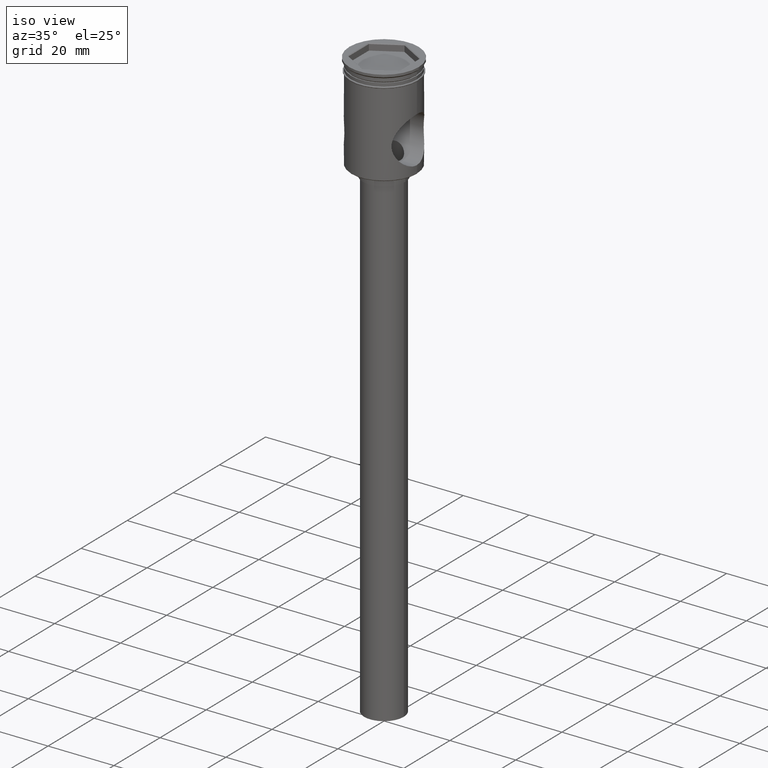
[diagram: clean part render]
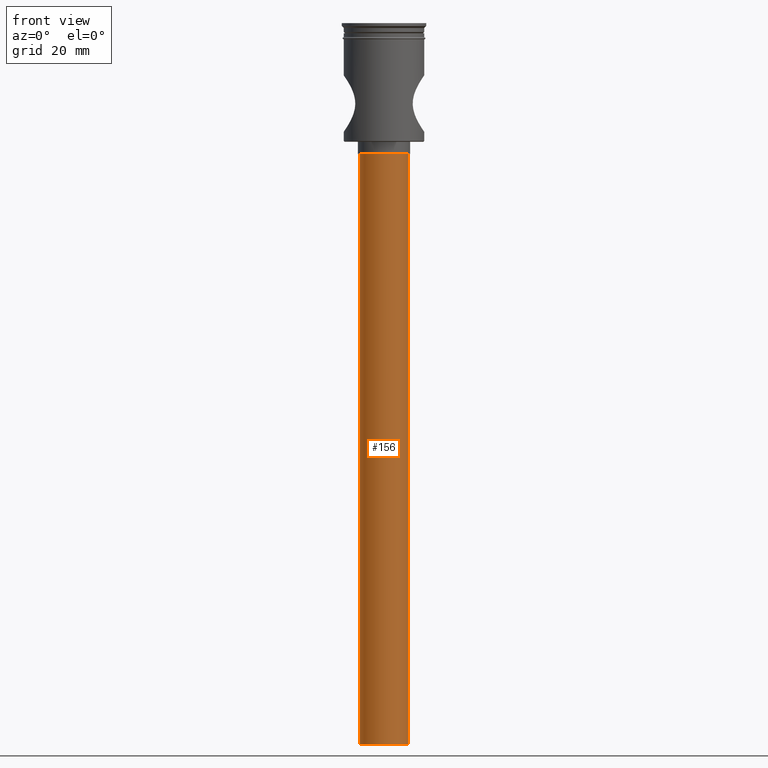
[diagram: tour spotlight — one face highlighted and labeled with its STEP entity id]
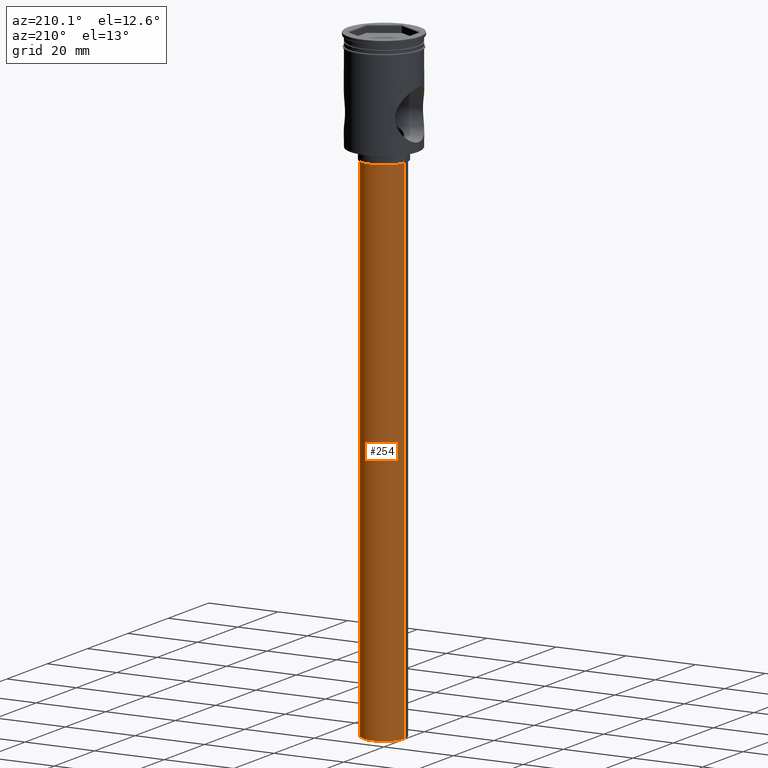
[diagram: tour spotlight — one face highlighted and labeled with its STEP entity id]
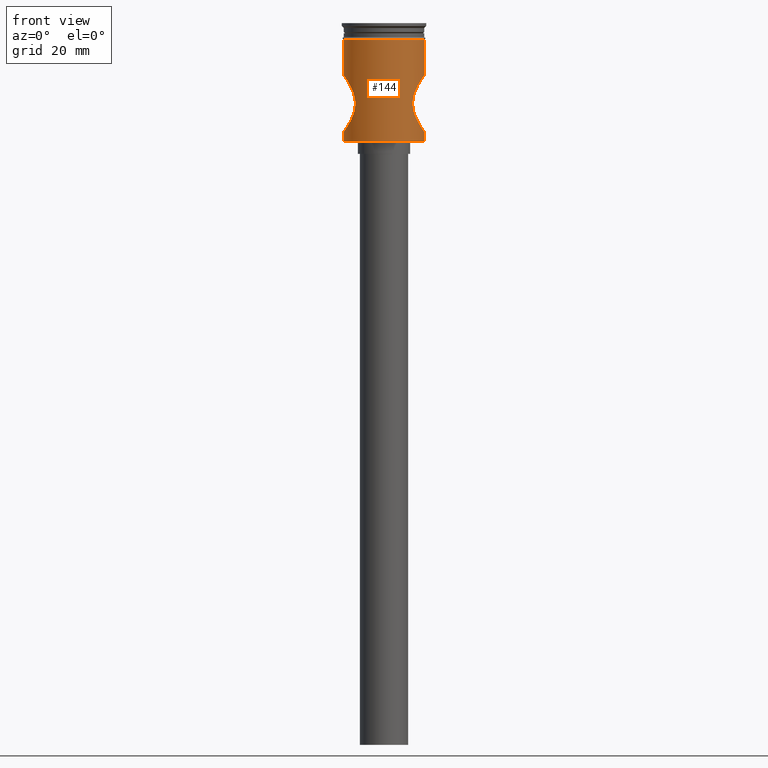
[diagram: tour spotlight — one face highlighted and labeled with its STEP entity id]
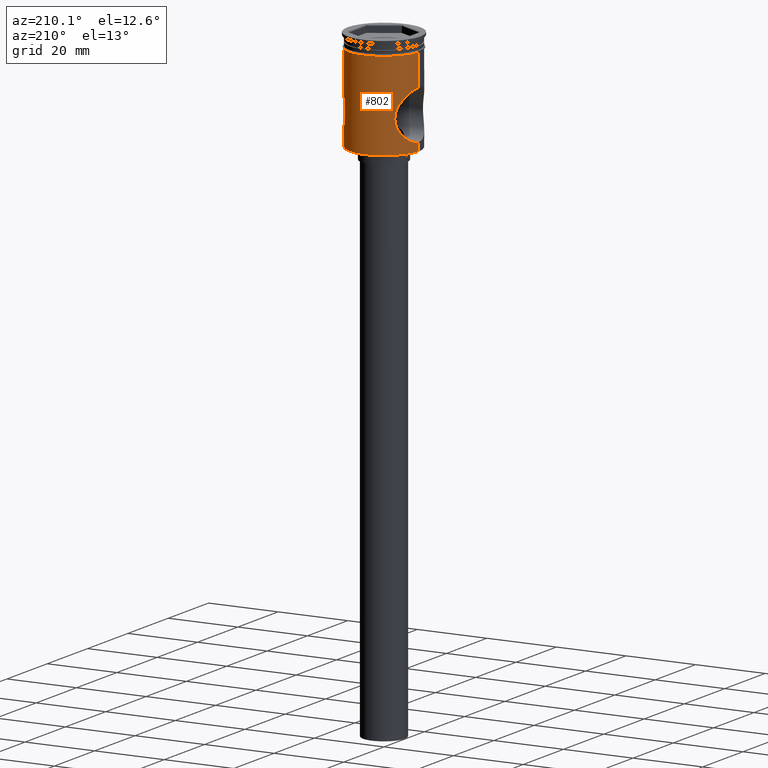
[diagram: tour spotlight — one face highlighted and labeled with its STEP entity id]
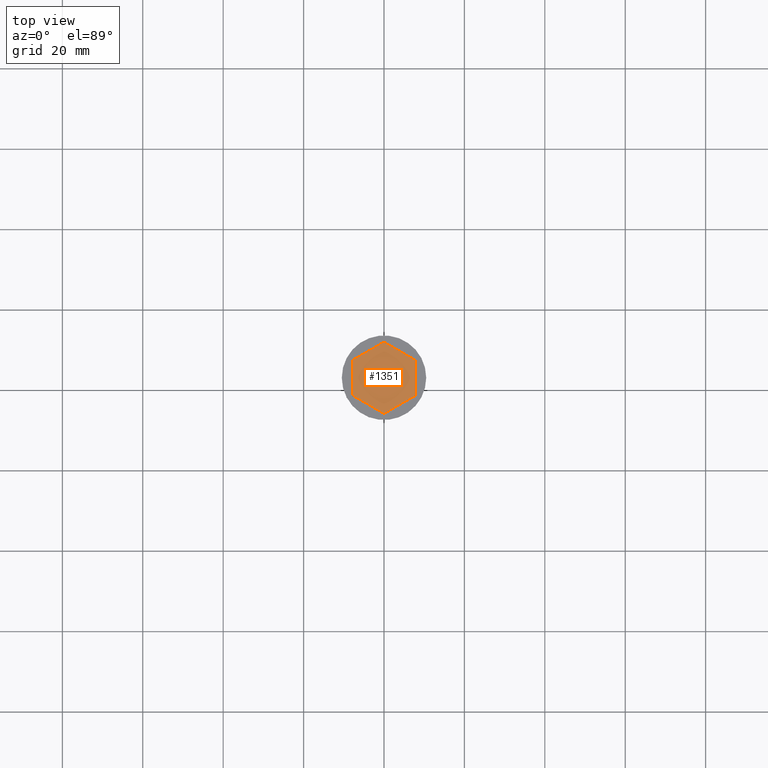
[diagram: tour spotlight — one face highlighted and labeled with its STEP entity id]
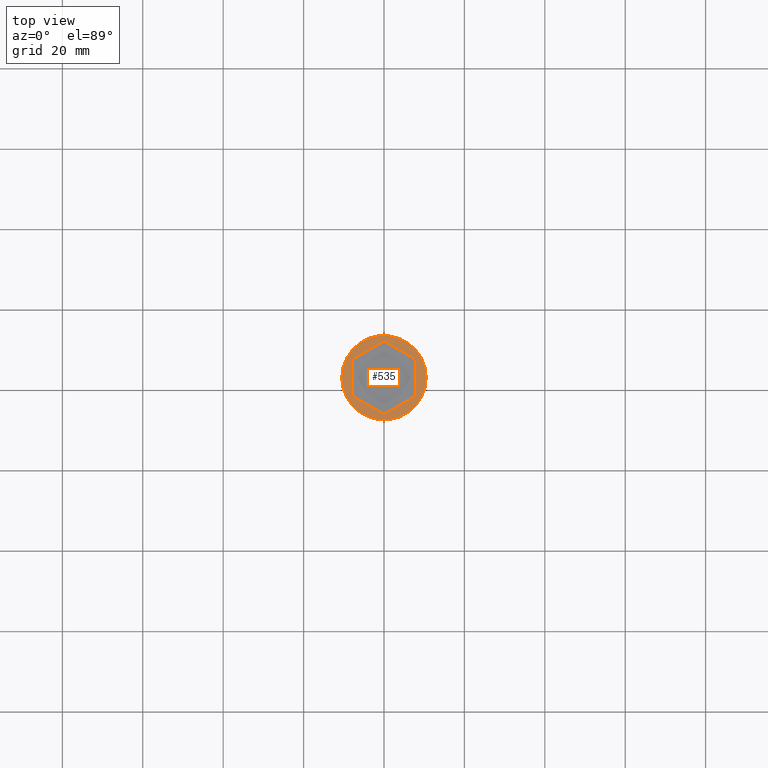
[diagram: tour spotlight — one face highlighted and labeled with its STEP entity id]
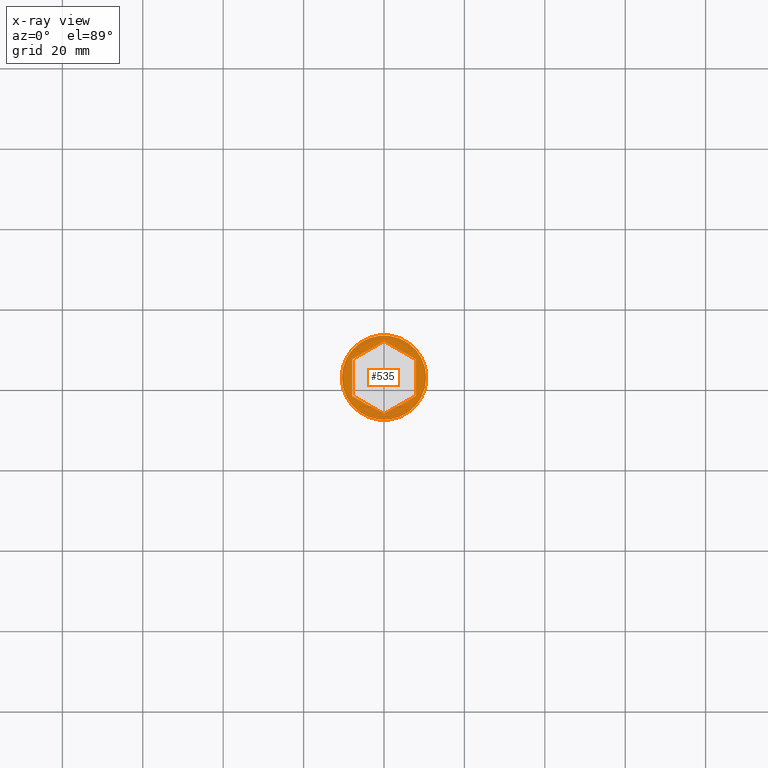
[diagram: x-ray of the same camera — body ghosted, this tour face saturated]
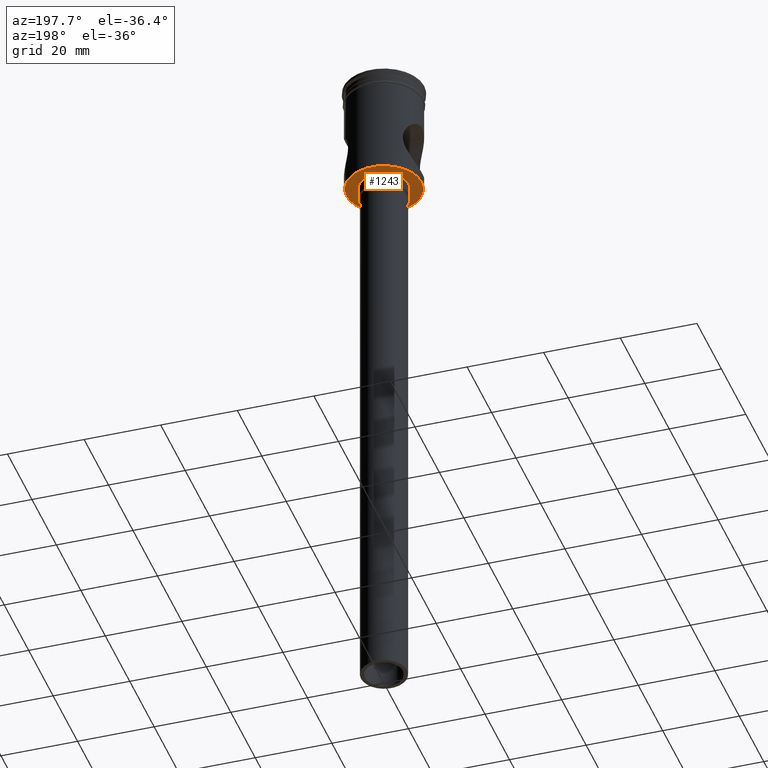
[diagram: tour spotlight — one face highlighted and labeled with its STEP entity id]
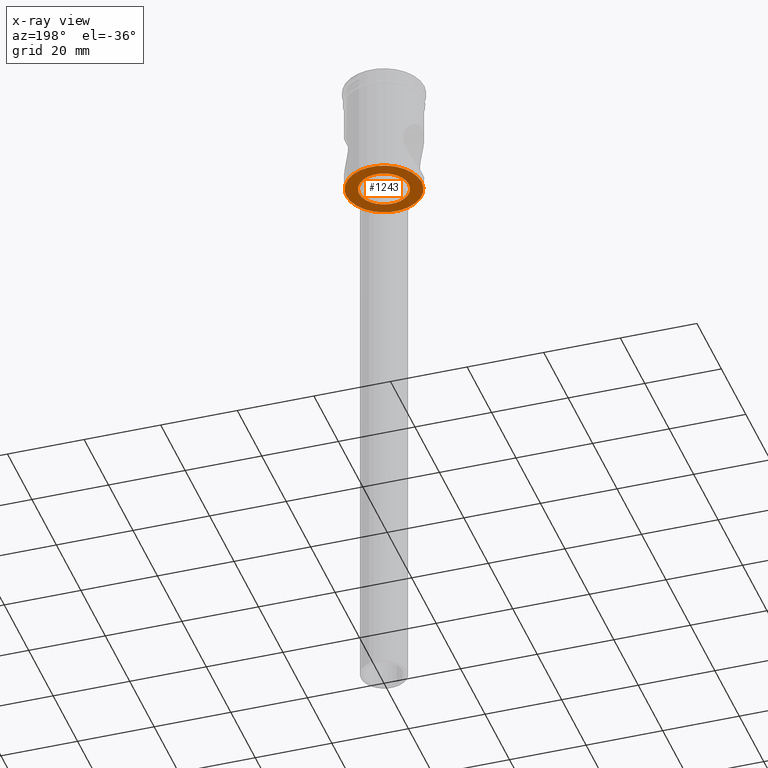
[diagram: x-ray of the same camera — body ghosted, this tour face saturated]
A machine part: a face-by-face anatomy tour. The part has 44 B-rep faces; the first image is the clean iso view, then the 7 largest visible faces are spotlighted one at a time (largest first), each with its STEP entity span.

Face 1 — front view, entity #156. In plain terms, the highlighted cylindrical surface (edge-blend (fillet) strip) has radius 6 mm, axis along (-0, -0, 1).
Definition (entity closure, byte-faithful):
#85 = CARTESIAN_POINT ( 'NONE',  ( 6.000000000000000888, 0.000000000000000000, -32.50000000000000000 ) ) ;
#96 = EDGE_CURVE ( 'NONE', #119, #247, #1257, .T. ) ;
#110 = DIRECTION ( 'NONE',  ( 0.000000000000000000, 0.000000000000000000, -1.000000000000000000 ) ) ;
#119 = VERTEX_POINT ( 'NONE', #1017 ) ;
#122 = AXIS2_PLACEMENT_3D ( 'NONE', #821, #110, #1385 ) ;
#156 = ADVANCED_FACE ( 'NONE', ( #800 ), #1394, .T. ) ;
#193 = CARTESIAN_POINT ( 'NONE',  ( 6.000000000000000888, 0.000000000000000000, -179.5000000000000000 ) ) ;
#207 = DIRECTION ( 'NONE',  ( 1.000000000000000000, 0.000000000000000000, 0.000000000000000000 ) ) ;
#210 = VERTEX_POINT ( 'NONE', #85 ) ;
#214 = DIRECTION ( 'NONE',  ( -0.000000000000000000, -0.000000000000000000, 1.000000000000000000 ) ) ;
#247 = VERTEX_POINT ( 'NONE', #383 ) ;
#262 = VERTEX_POINT ( 'NONE', #707 ) ;
#294 = EDGE_CURVE ( 'NONE', #210, #247, #760, .T. ) ;
#321 = CARTESIAN_POINT ( 'NONE',  ( 0.000000000000000000, 0.000000000000000000, -179.5000000000000000 ) ) ;
#346 = CARTESIAN_POINT ( 'NONE',  ( -6.000000000000000888, 7.347880794884120722E-16, -179.5000000000000000 ) ) ;
#383 = CARTESIAN_POINT ( 'NONE',  ( -6.000000000000000888, 7.347880794884120722E-16, -32.50000000000000000 ) ) ;
#532 = ORIENTED_EDGE ( 'NONE', *, *, #294, .T. ) ;
#545 = DIRECTION ( 'NONE',  ( -0.000000000000000000, -0.000000000000000000, 1.000000000000000000 ) ) ;
#579 = ORIENTED_EDGE ( 'NONE', *, *, #96, .F. ) ;
#639 = VECTOR ( 'NONE', #1360, 1000.000000000000000 ) ;
#707 = CARTESIAN_POINT ( 'NONE',  ( 6.000000000000000888, 0.000000000000000000, -179.5000000000000000 ) ) ;
#713 = DIRECTION ( 'NONE',  ( 0.000000000000000000, 0.000000000000000000, -1.000000000000000000 ) ) ;
#728 = DIRECTION ( 'NONE',  ( -1.000000000000000000, 0.000000000000000000, 0.000000000000000000 ) ) ;
#760 = CIRCLE ( 'NONE', #1229, 6.000000000000000888 ) ;
#772 = ORIENTED_EDGE ( 'NONE', *, *, #1072, .T. ) ;
#800 = FACE_OUTER_BOUND ( 'NONE', #862, .T. ) ;
#821 = CARTESIAN_POINT ( 'NONE',  ( 0.000000000000000000, 0.000000000000000000, -179.5000000000000000 ) ) ;
#829 = EDGE_CURVE ( 'NONE', #262, #119, #1008, .T. ) ;
#835 = VECTOR ( 'NONE', #214, 1000.000000000000000 ) ;
#862 = EDGE_LOOP ( 'NONE', ( #579, #1444, #772, #532 ) ) ;
#928 = AXIS2_PLACEMENT_3D ( 'NONE', #321, #545, #207 ) ;
#963 = CARTESIAN_POINT ( 'NONE',  ( 0.000000000000000000, 0.000000000000000000, -32.50000000000000000 ) ) ;
#1008 = CIRCLE ( 'NONE', #122, 6.000000000000000888 ) ;
#1017 = CARTESIAN_POINT ( 'NONE',  ( -6.000000000000000888, 7.347880794884120722E-16, -179.5000000000000000 ) ) ;
#1072 = EDGE_CURVE ( 'NONE', #262, #210, #1248, .T. ) ;
#1229 = AXIS2_PLACEMENT_3D ( 'NONE', #963, #713, #728 ) ;
#1248 = LINE ( 'NONE', #193, #639 ) ;
#1257 = LINE ( 'NONE', #346, #835 ) ;
#1360 = DIRECTION ( 'NONE',  ( -0.000000000000000000, -0.000000000000000000, 1.000000000000000000 ) ) ;
#1385 = DIRECTION ( 'NONE',  ( -1.000000000000000000, 0.000000000000000000, 0.000000000000000000 ) ) ;
#1394 = CYLINDRICAL_SURFACE ( 'NONE', #928, 6.000000000000000888 ) ;
#1444 = ORIENTED_EDGE ( 'NONE', *, *, #829, .F. ) ;

Face 2 — auxiliary view, entity #254. In plain terms, the highlighted cylindrical surface (edge-blend (fillet) strip) has radius 6 mm, axis along (-0, -0, 1).
Definition (entity closure, byte-faithful):
#2 = DIRECTION ( 'NONE',  ( -1.000000000000000000, 0.000000000000000000, 0.000000000000000000 ) ) ;
#71 = AXIS2_PLACEMENT_3D ( 'NONE', #382, #1336, #1369 ) ;
#85 = CARTESIAN_POINT ( 'NONE',  ( 6.000000000000000888, 0.000000000000000000, -32.50000000000000000 ) ) ;
#96 = EDGE_CURVE ( 'NONE', #119, #247, #1257, .T. ) ;
#119 = VERTEX_POINT ( 'NONE', #1017 ) ;
#124 = DIRECTION ( 'NONE',  ( -0.000000000000000000, -0.000000000000000000, 1.000000000000000000 ) ) ;
#193 = CARTESIAN_POINT ( 'NONE',  ( 6.000000000000000888, 0.000000000000000000, -179.5000000000000000 ) ) ;
#210 = VERTEX_POINT ( 'NONE', #85 ) ;
#214 = DIRECTION ( 'NONE',  ( -0.000000000000000000, -0.000000000000000000, 1.000000000000000000 ) ) ;
#227 = DIRECTION ( 'NONE',  ( 1.000000000000000000, 0.000000000000000000, 0.000000000000000000 ) ) ;
#247 = VERTEX_POINT ( 'NONE', #383 ) ;
#254 = ADVANCED_FACE ( 'NONE', ( #1419 ), #857, .T. ) ;
#262 = VERTEX_POINT ( 'NONE', #707 ) ;
#340 = AXIS2_PLACEMENT_3D ( 'NONE', #572, #563, #2 ) ;
#346 = CARTESIAN_POINT ( 'NONE',  ( -6.000000000000000888, 7.347880794884120722E-16, -179.5000000000000000 ) ) ;
#370 = ORIENTED_EDGE ( 'NONE', *, *, #96, .T. ) ;
#382 = CARTESIAN_POINT ( 'NONE',  ( 0.000000000000000000, 0.000000000000000000, -179.5000000000000000 ) ) ;
#383 = CARTESIAN_POINT ( 'NONE',  ( -6.000000000000000888, 7.347880794884120722E-16, -32.50000000000000000 ) ) ;
#489 = ORIENTED_EDGE ( 'NONE', *, *, #1072, .F. ) ;
#563 = DIRECTION ( 'NONE',  ( 0.000000000000000000, 0.000000000000000000, -1.000000000000000000 ) ) ;
#572 = CARTESIAN_POINT ( 'NONE',  ( 0.000000000000000000, 0.000000000000000000, -32.50000000000000000 ) ) ;
#639 = VECTOR ( 'NONE', #1360, 1000.000000000000000 ) ;
#707 = CARTESIAN_POINT ( 'NONE',  ( 6.000000000000000888, 0.000000000000000000, -179.5000000000000000 ) ) ;
#725 = EDGE_CURVE ( 'NONE', #119, #262, #734, .T. ) ;
#734 = CIRCLE ( 'NONE', #71, 6.000000000000000888 ) ;
#827 = EDGE_LOOP ( 'NONE', ( #1206, #370, #1352, #489 ) ) ;
#832 = CARTESIAN_POINT ( 'NONE',  ( 0.000000000000000000, 0.000000000000000000, -179.5000000000000000 ) ) ;
#835 = VECTOR ( 'NONE', #214, 1000.000000000000000 ) ;
#839 = CIRCLE ( 'NONE', #340, 6.000000000000000888 ) ;
#857 = CYLINDRICAL_SURFACE ( 'NONE', #1399, 6.000000000000000888 ) ;
#890 = EDGE_CURVE ( 'NONE', #247, #210, #839, .T. ) ;
#1017 = CARTESIAN_POINT ( 'NONE',  ( -6.000000000000000888, 7.347880794884120722E-16, -179.5000000000000000 ) ) ;
#1072 = EDGE_CURVE ( 'NONE', #262, #210, #1248, .T. ) ;
#1206 = ORIENTED_EDGE ( 'NONE', *, *, #725, .F. ) ;
#1248 = LINE ( 'NONE', #193, #639 ) ;
#1257 = LINE ( 'NONE', #346, #835 ) ;
#1336 = DIRECTION ( 'NONE',  ( 0.000000000000000000, 0.000000000000000000, -1.000000000000000000 ) ) ;
#1352 = ORIENTED_EDGE ( 'NONE', *, *, #890, .T. ) ;
#1360 = DIRECTION ( 'NONE',  ( -0.000000000000000000, -0.000000000000000000, 1.000000000000000000 ) ) ;
#1369 = DIRECTION ( 'NONE',  ( -1.000000000000000000, 0.000000000000000000, 0.000000000000000000 ) ) ;
#1399 = AXIS2_PLACEMENT_3D ( 'NONE', #832, #124, #227 ) ;
#1419 = FACE_OUTER_BOUND ( 'NONE', #827, .T. ) ;

Face 3 — front view, entity #144. In plain terms, the highlighted cylindrical surface (partial cylindrical patch) has radius 10 mm, axis along (-0, -0, 1).
Definition (entity closure, byte-faithful):
#1 = VERTEX_POINT ( 'NONE', #278 ) ;
#5 = CARTESIAN_POINT ( 'NONE',  ( 7.140877080678153632, -7.000562488098498903, -19.52635574343557678 ) ) ;
#8 = CARTESIAN_POINT ( 'NONE',  ( -7.503273641266416050, -6.611317046147628496, -22.31171733569519944 ) ) ;
#13 = CARTESIAN_POINT ( 'NONE',  ( 9.347318963212909892, -3.576349491498993505, -13.96584429441085717 ) ) ;
#27 = CARTESIAN_POINT ( 'NONE',  ( -7.964400624432382614, -6.054727537725130837, -23.54044438658495153 ) ) ;
#32 = CARTESIAN_POINT ( 'NONE',  ( 8.503943671969897977, -5.273689396165734067, -24.62422230267287304 ) ) ;
#41 = CARTESIAN_POINT ( 'NONE',  ( -9.029975738911995009, -4.315133941133940887, -14.47019995321800501 ) ) ;
#55 = CARTESIAN_POINT ( 'NONE',  ( 9.965325511264428116, -0.9525671816038108197, -26.95070955909274346 ) ) ;
#61 = CARTESIAN_POINT ( 'NONE',  ( 9.826638545464751573, -1.868062541291061418, -26.75021854738501403 ) ) ;
#92 = FACE_OUTER_BOUND ( 'NONE', #479, .T. ) ;
#93 = CARTESIAN_POINT ( 'NONE',  ( 0.000000000000000000, 0.000000000000000000, -29.29999999999997229 ) ) ;
#128 = CARTESIAN_POINT ( 'NONE',  ( -9.029024665842506181, -4.317593744654968368, -25.52832831042054451 ) ) ;
#134 = CARTESIAN_POINT ( 'NONE',  ( 9.999999999999994671, 0.000000000000000000, 0.000000000000000000 ) ) ;
#139 = CARTESIAN_POINT ( 'NONE',  ( 7.723089038241833570, -6.353518016691835690, -22.94679462982523077 ) ) ;
#144 = ADVANCED_FACE ( 'NONE', ( #92 ), #818, .T. ) ;
#160 = CARTESIAN_POINT ( 'NONE',  ( -8.315624236750039699, -5.562535070965513029, -24.27231501587448292 ) ) ;
#168 = ORIENTED_EDGE ( 'NONE', *, *, #974, .F. ) ;
#202 = CARTESIAN_POINT ( 'NONE',  ( 0.000000000000000000, 0.000000000000000000, -3.999999999999996447 ) ) ;
#222 = ORIENTED_EDGE ( 'NONE', *, *, #301, .F. ) ;
#229 = VERTEX_POINT ( 'NONE', #460 ) ;
#233 = CARTESIAN_POINT ( 'NONE',  ( 7.322655419112947150, -6.810500286563441641, -18.36528137380276249 ) ) ;
#236 = DIRECTION ( 'NONE',  ( -0.000000000000000000, -0.000000000000000000, 1.000000000000000000 ) ) ;
#246 = CARTESIAN_POINT ( 'NONE',  ( -8.053311715077983379, -5.930176009131116643, -16.27420902905398847 ) ) ;
#250 = CARTESIAN_POINT ( 'NONE',  ( 7.377383315084116155, -6.751497144694275754, -18.13709901651008494 ) ) ;
#253 = CARTESIAN_POINT ( 'NONE',  ( -7.801002067758137315, -6.258004569467827238, -16.85560777748650096 ) ) ;
#257 = CARTESIAN_POINT ( 'NONE',  ( 9.991596185262174856, -0.4736682493084634071, -13.01198930438257939 ) ) ;
#260 = CARTESIAN_POINT ( 'NONE',  ( -9.991574020215788110, -0.4743472386555552256, -13.01202085301403244 ) ) ;
#272 = CARTESIAN_POINT ( 'NONE',  ( -9.999999999999996447, 0.000000000000000000, -27.00000000000000355 ) ) ;
#276 = CARTESIAN_POINT ( 'NONE',  ( 9.999999999999994671, 0.000000000000000000, 0.000000000000000000 ) ) ;
#278 = CARTESIAN_POINT ( 'NONE',  ( -10.00000000000000000, 1.224646799147353256E-15, -3.999999999999996447 ) ) ;
#301 = EDGE_CURVE ( 'NONE', #846, #498, #799, .T. ) ;
#328 = DIRECTION ( 'NONE',  ( -0.000000000000000000, -0.000000000000000000, 1.000000000000000000 ) ) ;
#329 = DIRECTION ( 'NONE',  ( -1.000000000000000000, 0.000000000000000000, 0.000000000000000000 ) ) ;
#345 = CARTESIAN_POINT ( 'NONE',  ( -9.999999999999994671, 1.224646799147352665E-15, -29.29999999999997229 ) ) ;
#352 = CARTESIAN_POINT ( 'NONE',  ( 9.028965068475372391, -4.317457269925927044, -14.47181101200376219 ) ) ;
#368 = CARTESIAN_POINT ( 'NONE',  ( 7.141989287018506438, -6.999427809131204548, -20.49012689816928301 ) ) ;
#371 = CARTESIAN_POINT ( 'NONE',  ( -9.343068346694407111, -3.570972421456891865, -13.97506645596566699 ) ) ;
#376 = CARTESIAN_POINT ( 'NONE',  ( 7.717429328536873356, -6.360383034377455225, -17.06803860621226221 ) ) ;
#380 = CARTESIAN_POINT ( 'NONE',  ( -7.720495804876727597, -6.356685689900114511, -17.05985571267803991 ) ) ;
#385 = ORIENTED_EDGE ( 'NONE', *, *, #982, .T. ) ;
#386 = CARTESIAN_POINT ( 'NONE',  ( -9.999999999999992895, -0.2371603752032593604, -12.99999999999999822 ) ) ;
#394 = CIRCLE ( 'NONE', #1309, 9.999999999999998224 ) ;
#396 = CARTESIAN_POINT ( 'NONE',  ( -7.967226261725709691, -6.044961550507585990, -16.46329765270407464 ) ) ;
#405 = EDGE_CURVE ( 'NONE', #509, #498, #1327, .T. ) ;
#460 = CARTESIAN_POINT ( 'NONE',  ( -9.999999999999994671, 1.229780025839397734E-15, -13.00000000000000355 ) ) ;
#476 = DIRECTION ( 'NONE',  ( -0.000000000000000000, -0.000000000000000000, 1.000000000000000000 ) ) ;
#479 = EDGE_LOOP ( 'NONE', ( #1242, #999, #657, #222, #385, #496, #526, #168 ) ) ;
#480 = CARTESIAN_POINT ( 'NONE',  ( -7.236111701560243858, -6.902383710959965057, -21.18811620976742915 ) ) ;
#488 = CARTESIAN_POINT ( 'NONE',  ( -9.735967975428483356, -2.325336189795351949, -13.38128717480536167 ) ) ;
#496 = ORIENTED_EDGE ( 'NONE', *, *, #1324, .F. ) ;
#497 = CARTESIAN_POINT ( 'NONE',  ( -7.141373392009655596, -7.000056148497765030, -19.76373034873125434 ) ) ;
#498 = VERTEX_POINT ( 'NONE', #1255 ) ;
#500 = CARTESIAN_POINT ( 'NONE',  ( 8.860185483737918588, -4.650373212660213085, -25.25064384002004303 ) ) ;
#504 = CARTESIAN_POINT ( 'NONE',  ( -9.493823586986472662, -3.171854784083766532, -26.25704949909892605 ) ) ;
#509 = VERTEX_POINT ( 'NONE', #1275 ) ;
#510 = CARTESIAN_POINT ( 'NONE',  ( -9.485754788391531633, -3.172574074835091462, -13.75608760595409308 ) ) ;
#515 = VECTOR ( 'NONE', #236, 1000.000000000000000 ) ;
#526 = ORIENTED_EDGE ( 'NONE', *, *, #623, .F. ) ;
#552 = DIRECTION ( 'NONE',  ( 1.000000000000000000, 0.000000000000000000, 0.000000000000000000 ) ) ;
#584 = AXIS2_PLACEMENT_3D ( 'NONE', #1023, #328, #672 ) ;
#592 = CARTESIAN_POINT ( 'NONE',  ( 8.853430568094129427, -4.663155653245506294, -14.76073180007296415 ) ) ;
#599 = CARTESIAN_POINT ( 'NONE',  ( 9.832878540591767802, -1.879722866531851500, -13.24054240779418912 ) ) ;
#602 = DIRECTION ( 'NONE',  ( -0.000000000000000000, -0.000000000000000000, 1.000000000000000000 ) ) ;
#606 = CARTESIAN_POINT ( 'NONE',  ( 7.802583678074496376, -6.256037095215745580, -23.14831442975813758 ) ) ;
#617 = CARTESIAN_POINT ( 'NONE',  ( 8.056358060451358938, -5.926078000082590336, -23.73242365119358865 ) ) ;
#623 = EDGE_CURVE ( 'NONE', #229, #1, #926, .T. ) ;
#627 = CARTESIAN_POINT ( 'NONE',  ( -7.141483849871206324, -6.999943458932624374, -20.23958506209359243 ) ) ;
#657 = ORIENTED_EDGE ( 'NONE', *, *, #405, .T. ) ;
#672 = DIRECTION ( 'NONE',  ( 1.000000000000000000, 0.000000000000000000, 0.000000000000000000 ) ) ;
#673 = DIRECTION ( 'NONE',  ( -0.000000000000000000, -0.000000000000000000, 1.000000000000000000 ) ) ;
#710 = CARTESIAN_POINT ( 'NONE',  ( -9.932071413309429886, -1.186883990593140314, -13.09730212679606964 ) ) ;
#717 = CARTESIAN_POINT ( 'NONE',  ( -9.832512437962641627, -1.881659858244549621, -13.24107387809922720 ) ) ;
#721 = CARTESIAN_POINT ( 'NONE',  ( 7.574535355013245486, -6.529908853628298537, -22.53201108648861961 ) ) ;
#731 = CARTESIAN_POINT ( 'NONE',  ( -7.153235015771535643, -6.988014041043822289, -19.52714534028609350 ) ) ;
#742 = CARTESIAN_POINT ( 'NONE',  ( -7.325106434378655607, -6.807865243658027588, -21.64544578927128882 ) ) ;
#799 = B_SPLINE_CURVE_WITH_KNOTS ( 'NONE', 3,
 ( #1412, #1053, #257, #1192, #1533, #599, #1185, #1067, #13, #352, #592, #938, #1061, #850, #1294, #1435, #376, #1426, #1176, #250, #233, #1320, #5, #368, #1075, #945, #843, #1312, #721, #139, #606, #1199, #617, #1086, #32, #500, #969, #1442, #1337, #988, #874, #61, #886, #55, #1357, #1223 ),
 .UNSPECIFIED., .F., .F.,
 ( 4, 2, 2, 2, 2, 2, 2, 2, 2, 2, 2, 2, 2, 2, 2, 2, 2, 2, 2, 2, 2, 2, 4 ),
 ( 0.02273717132267115415, 0.02344677004960173464, 0.02415636877653231512, 0.02557556623039347263, 0.02699476368425463360, 0.02841396113811579111, 0.02983315859197695208, 0.03054275731890752910, 0.03125235604583810611, 0.03196195477276868313, 0.03267155349969926015, 0.03409075095356042112, 0.03550994840742158210, 0.03621954713435215911, 0.03692914586128273613, 0.03763874458821332009, 0.03834834331514389710, 0.03976754076900505808, 0.04118673822286621211, 0.04260593567672736615, 0.04331553440365794316, 0.04402513313058852018, 0.04544433058444967422 ),
 .UNSPECIFIED. ) ;
#808 = VECTOR ( 'NONE', #476, 1000.000000000000000 ) ;
#818 = CYLINDRICAL_SURFACE ( 'NONE', #584, 9.999999999999994671 ) ;
#837 = CARTESIAN_POINT ( 'NONE',  ( -9.965446655919851793, -0.9519641332654177335, -26.95088558220736275 ) ) ;
#843 = CARTESIAN_POINT ( 'NONE',  ( 7.381411116935109540, -6.747102913955163039, -21.87877048370861033 ) ) ;
#846 = VERTEX_POINT ( 'NONE', #1172 ) ;
#847 = CARTESIAN_POINT ( 'NONE',  ( -9.957729828106902659, -0.9487746701410776362, -13.06049825370512885 ) ) ;
#850 = CARTESIAN_POINT ( 'NONE',  ( 8.050554706296177088, -5.933943087171876130, -16.28011583648020988 ) ) ;
#854 = EDGE_CURVE ( 'NONE', #1494, #972, #1050, .T. ) ;
#860 = CARTESIAN_POINT ( 'NONE',  ( -9.999999999999994671, 1.229780025839397734E-15, -13.00000000000000355 ) ) ;
#870 = CARTESIAN_POINT ( 'NONE',  ( -7.234464554488559962, -6.904114004842420549, -18.82145945963318567 ) ) ;
#874 = CARTESIAN_POINT ( 'NONE',  ( 9.730782946235684960, -2.316105786581691195, -26.60989879506474054 ) ) ;
#885 = VECTOR ( 'NONE', #1093, 1000.000000000000000 ) ;
#886 = CARTESIAN_POINT ( 'NONE',  ( 9.867116120145132285, -1.641278058953922203, -26.80890176429205596 ) ) ;
#924 = CARTESIAN_POINT ( 'NONE',  ( -9.999999999999994671, 1.224646799147352665E-15, 0.000000000000000000 ) ) ;
#926 = LINE ( 'NONE', #1417, #808 ) ;
#938 = CARTESIAN_POINT ( 'NONE',  ( 8.497179343882919511, -5.284524261307589121, -15.38819392766633065 ) ) ;
#945 = CARTESIAN_POINT ( 'NONE',  ( 7.326263957022343121, -6.806624336356016158, -21.65073055260621260 ) ) ;
#948 = CARTESIAN_POINT ( 'NONE',  ( -9.267396788860443380, -3.762388530127550812, -14.09286872329777296 ) ) ;
#957 = CIRCLE ( 'NONE', #1252, 9.999999999999994671 ) ;
#966 = CARTESIAN_POINT ( 'NONE',  ( -7.379165411094855465, -6.749558967525724817, -21.87002777218120286 ) ) ;
#969 = CARTESIAN_POINT ( 'NONE',  ( 9.035512705743391493, -4.303590503429355785, -25.53881697926559369 ) ) ;
#972 = VERTEX_POINT ( 'NONE', #272 ) ;
#973 = CARTESIAN_POINT ( 'NONE',  ( -8.498707828545159160, -5.282283036785493380, -15.38527946463392659 ) ) ;
#974 = EDGE_CURVE ( 'NONE', #972, #229, #1091, .T. ) ;
#980 = CARTESIAN_POINT ( 'NONE',  ( -8.500359578522523663, -5.279417043634754947, -24.61763755135370957 ) ) ;
#982 = EDGE_CURVE ( 'NONE', #846, #1088, #1188, .T. ) ;
#988 = CARTESIAN_POINT ( 'NONE',  ( 9.675488818793544610, -2.536388918100088485, -26.52836702033824778 ) ) ;
#999 = ORIENTED_EDGE ( 'NONE', *, *, #1178, .T. ) ;
#1023 = CARTESIAN_POINT ( 'NONE',  ( 0.000000000000000000, 0.000000000000000000, 0.000000000000000000 ) ) ;
#1031 = VECTOR ( 'NONE', #602, 1000.000000000000000 ) ;
#1041 = DIRECTION ( 'NONE',  ( -0.000000000000000000, -0.000000000000000000, 1.000000000000000000 ) ) ;
#1050 = LINE ( 'NONE', #924, #515 ) ;
#1053 = CARTESIAN_POINT ( 'NONE',  ( 9.999999999999996447, -0.2368473339933005184, -13.00000000000000178 ) ) ;
#1061 = CARTESIAN_POINT ( 'NONE',  ( 8.315544161946235135, -5.562748588078726186, -15.72768175892419151 ) ) ;
#1064 = CARTESIAN_POINT ( 'NONE',  ( -9.349377247001186220, -3.571280898155816619, -26.03738208151085942 ) ) ;
#1067 = CARTESIAN_POINT ( 'NONE',  ( 9.492393824703038163, -3.176669941205827907, -13.74509325342724075 ) ) ;
#1075 = CARTESIAN_POINT ( 'NONE',  ( 7.191763660842745765, -6.949507115151161152, -20.96152780032075569 ) ) ;
#1079 = CARTESIAN_POINT ( 'NONE',  ( -9.999999999999998224, -0.4814323775651352944, -27.00000000000000711 ) ) ;
#1086 = CARTESIAN_POINT ( 'NONE',  ( 8.322069302564294446, -5.553051878775055350, -24.28499264081531805 ) ) ;
#1088 = VERTEX_POINT ( 'NONE', #1125 ) ;
#1091 = B_SPLINE_CURVE_WITH_KNOTS ( 'NONE', 3,
 ( #1195, #1079, #837, #1453, #1316, #504, #1064, #128, #1213, #980, #160, #27, #1204, #1308, #8, #966, #742, #480, #1430, #1331, #627, #497, #731, #1097, #870, #1181, #1439, #380, #253, #396, #246, #1340, #973, #1445, #41, #948, #371, #510, #1422, #488, #717, #710, #847, #260, #386, #860 ),
 .UNSPECIFIED., .F., .F.,
 ( 4, 2, 2, 2, 2, 2, 2, 2, 2, 2, 2, 2, 2, 2, 2, 2, 2, 2, 2, 2, 2, 2, 4 ),
 ( 0.000000000000000000, 0.001421073207666954290, 0.002842146415333908580, 0.004263219623000863087, 0.005684292830667816293, 0.007105366038334770366, 0.008526439246001722705, 0.009236975849835196706, 0.009947512453668670707, 0.01065804905750214297, 0.01136858566133561697, 0.01207912226516908924, 0.01278965886900256151, 0.01421073207666950777, 0.01492126868050297657, 0.01563180528433644884, 0.01705287849200338296, 0.01847395169967032055, 0.01918448830350378762, 0.01989502490733725468, 0.02131609811500418880, 0.02202663471883765586, 0.02273717132267112292 ),
 .UNSPECIFIED. ) ;
#1093 = DIRECTION ( 'NONE',  ( -0.000000000000000000, -0.000000000000000000, 1.000000000000000000 ) ) ;
#1097 = CARTESIAN_POINT ( 'NONE',  ( -7.199668910925415055, -6.940164191266632976, -19.05657392165621999 ) ) ;
#1125 = CARTESIAN_POINT ( 'NONE',  ( 9.999999999999998224, 0.000000000000000000, -3.999999999999996447 ) ) ;
#1172 = CARTESIAN_POINT ( 'NONE',  ( 9.999999999999994671, -5.133226810943367768E-18, -13.00000000000000355 ) ) ;
#1176 = CARTESIAN_POINT ( 'NONE',  ( 7.500597748671954612, -6.614342876288897166, -17.69704926583546722 ) ) ;
#1178 = EDGE_CURVE ( 'NONE', #1494, #509, #957, .T. ) ;
#1181 = CARTESIAN_POINT ( 'NONE',  ( -7.368839572955796058, -6.761454996973015774, -18.12764364703030395 ) ) ;
#1185 = CARTESIAN_POINT ( 'NONE',  ( 9.736384942666981956, -2.323699784143519409, -13.38067151163704516 ) ) ;
#1188 = LINE ( 'NONE', #134, #1031 ) ;
#1192 = CARTESIAN_POINT ( 'NONE',  ( 9.957864273581442660, -0.9472565907286202291, -13.06030547907275619 ) ) ;
#1195 = CARTESIAN_POINT ( 'NONE',  ( -9.999999999999996447, 0.000000000000000000, -27.00000000000000355 ) ) ;
#1199 = CARTESIAN_POINT ( 'NONE',  ( 7.969012120586810966, -6.042611853496006269, -23.54072391938827025 ) ) ;
#1204 = CARTESIAN_POINT ( 'NONE',  ( -7.796463043157197959, -6.266459839169562507, -23.15209899686185580 ) ) ;
#1213 = CARTESIAN_POINT ( 'NONE',  ( -8.856372138511659386, -4.657577678256725306, -25.24421500772974625 ) ) ;
#1223 = CARTESIAN_POINT ( 'NONE',  ( 9.999999999999994671, 0.000000000000000000, -27.00000000000001066 ) ) ;
#1242 = ORIENTED_EDGE ( 'NONE', *, *, #854, .F. ) ;
#1252 = AXIS2_PLACEMENT_3D ( 'NONE', #93, #1041, #329 ) ;
#1255 = CARTESIAN_POINT ( 'NONE',  ( 9.999999999999994671, 0.000000000000000000, -27.00000000000001066 ) ) ;
#1275 = CARTESIAN_POINT ( 'NONE',  ( 9.999999999999994671, 0.000000000000000000, -29.29999999999997229 ) ) ;
#1294 = CARTESIAN_POINT ( 'NONE',  ( 7.963207023572480558, -6.050255927956311730, -16.47232531239752618 ) ) ;
#1308 = CARTESIAN_POINT ( 'NONE',  ( -7.573222039985393117, -6.531435267832767622, -22.52812481744789608 ) ) ;
#1309 = AXIS2_PLACEMENT_3D ( 'NONE', #202, #673, #552 ) ;
#1312 = CARTESIAN_POINT ( 'NONE',  ( 7.505468983612138878, -6.608824641700789648, -22.31875249157932117 ) ) ;
#1316 = CARTESIAN_POINT ( 'NONE',  ( -9.735585976469913305, -2.326309258653755929, -26.61812786508322759 ) ) ;
#1320 = CARTESIAN_POINT ( 'NONE',  ( 7.189382404875344967, -6.951946978929631982, -19.05590796920065344 ) ) ;
#1324 = EDGE_CURVE ( 'NONE', #1, #1088, #394, .T. ) ;
#1327 = LINE ( 'NONE', #276, #885 ) ;
#1331 = CARTESIAN_POINT ( 'NONE',  ( -7.153700441637877994, -6.987541224765999814, -20.48080140017840378 ) ) ;
#1337 = CARTESIAN_POINT ( 'NONE',  ( 9.494221684495640190, -3.170672659151725803, -26.25765240908376441 ) ) ;
#1340 = CARTESIAN_POINT ( 'NONE',  ( -8.316470757484857756, -5.561257273121389844, -15.72607428983809008 ) ) ;
#1357 = CARTESIAN_POINT ( 'NONE',  ( 9.999999999999996447, -0.4807969081117849930, -27.00000000000000711 ) ) ;
#1412 = CARTESIAN_POINT ( 'NONE',  ( 9.999999999999994671, -5.133226810943367768E-18, -13.00000000000000355 ) ) ;
#1417 = CARTESIAN_POINT ( 'NONE',  ( -9.999999999999994671, 1.224646799147352665E-15, 0.000000000000000000 ) ) ;
#1422 = CARTESIAN_POINT ( 'NONE',  ( -9.553141715981869453, -2.964211287661886907, -13.65436461758241826 ) ) ;
#1426 = CARTESIAN_POINT ( 'NONE',  ( 7.569330506494650557, -6.535933251526300225, -17.48356472559869701 ) ) ;
#1430 = CARTESIAN_POINT ( 'NONE',  ( -7.201179731105406212, -6.938600208746064979, -20.95536877560809330 ) ) ;
#1435 = CARTESIAN_POINT ( 'NONE',  ( 7.796802139286404199, -6.263237125868980293, -16.86600156342441181 ) ) ;
#1439 = CARTESIAN_POINT ( 'NONE',  ( -7.495754172928653425, -6.623269820279322317, -17.68917710553389711 ) ) ;
#1442 = CARTESIAN_POINT ( 'NONE',  ( 9.351609315107900500, -3.564938189428362492, -26.04074502495871357 ) ) ;
#1445 = CARTESIAN_POINT ( 'NONE',  ( -8.857763224790602408, -4.655166966848104160, -14.75332674821394185 ) ) ;
#1453 = CARTESIAN_POINT ( 'NONE',  ( -9.834047061028449832, -1.872933838790286742, -26.76115115372198616 ) ) ;
#1494 = VERTEX_POINT ( 'NONE', #345 ) ;
#1533 = CARTESIAN_POINT ( 'NONE',  ( 9.932287513067294071, -1.185065133237713564, -13.09699146176596152 ) ) ;

Face 4 — auxiliary view, entity #802. In plain terms, the highlighted cylindrical surface (partial cylindrical patch) has radius 10 mm, axis along (-0, -0, 1).
Definition (entity closure, byte-faithful):
#1 = VERTEX_POINT ( 'NONE', #278 ) ;
#21 = AXIS2_PLACEMENT_3D ( 'NONE', #1287, #1263, #551 ) ;
#30 = CARTESIAN_POINT ( 'NONE',  ( 0.000000000000000000, 0.000000000000000000, -3.999999999999996447 ) ) ;
#37 = CARTESIAN_POINT ( 'NONE',  ( 7.495754172928653425, 6.623269820279323206, -17.68917710553390421 ) ) ;
#83 = CARTESIAN_POINT ( 'NONE',  ( -9.832878540591766026, 1.879722866531852610, -13.24054240779419089 ) ) ;
#89 = EDGE_CURVE ( 'NONE', #509, #1494, #1127, .T. ) ;
#90 = CARTESIAN_POINT ( 'NONE',  ( -9.932287513067288742, 1.185065133237715562, -13.09699146176595974 ) ) ;
#100 = CARTESIAN_POINT ( 'NONE',  ( -7.569330506494653221, 6.535933251526299337, -17.48356472559870411 ) ) ;
#106 = CARTESIAN_POINT ( 'NONE',  ( -9.867116120145130509, 1.641278058953928198, -26.80890176429204885 ) ) ;
#109 = ORIENTED_EDGE ( 'NONE', *, *, #623, .T. ) ;
#134 = CARTESIAN_POINT ( 'NONE',  ( 9.999999999999994671, 0.000000000000000000, 0.000000000000000000 ) ) ;
#141 = ORIENTED_EDGE ( 'NONE', *, *, #854, .T. ) ;
#169 = CARTESIAN_POINT ( 'NONE',  ( 9.735967975428478027, 2.325336189795355502, -13.38128717480536345 ) ) ;
#190 = CARTESIAN_POINT ( 'NONE',  ( -7.377383315084117932, 6.751497144694277530, -18.13709901651008494 ) ) ;
#198 = CARTESIAN_POINT ( 'NONE',  ( -8.322069302564289117, 5.553051878775062455, -24.28499264081531095 ) ) ;
#204 = CARTESIAN_POINT ( 'NONE',  ( 9.965446655919850016, 0.9519641332654187327, -26.95088558220736630 ) ) ;
#205 = CARTESIAN_POINT ( 'NONE',  ( -9.736384942666980180, 2.323699784143521185, -13.38067151163704871 ) ) ;
#212 = CARTESIAN_POINT ( 'NONE',  ( -8.497179343882921287, 5.284524261307590010, -15.38819392766633243 ) ) ;
#229 = VERTEX_POINT ( 'NONE', #460 ) ;
#236 = DIRECTION ( 'NONE',  ( -0.000000000000000000, -0.000000000000000000, 1.000000000000000000 ) ) ;
#265 = CARTESIAN_POINT ( 'NONE',  ( 7.573222039985391341, 6.531435267832768510, -22.52812481744788897 ) ) ;
#272 = CARTESIAN_POINT ( 'NONE',  ( -9.999999999999996447, 0.000000000000000000, -27.00000000000000355 ) ) ;
#274 = CARTESIAN_POINT ( 'NONE',  ( 7.503273641266415162, 6.611317046147628496, -22.31171733569519944 ) ) ;
#276 = CARTESIAN_POINT ( 'NONE',  ( 9.999999999999994671, 0.000000000000000000, 0.000000000000000000 ) ) ;
#278 = CARTESIAN_POINT ( 'NONE',  ( -10.00000000000000000, 1.224646799147353256E-15, -3.999999999999996447 ) ) ;
#303 = CARTESIAN_POINT ( 'NONE',  ( -7.140877080678154520, 7.000562488098499792, -19.52635574343557323 ) ) ;
#307 = ORIENTED_EDGE ( 'NONE', *, *, #474, .F. ) ;
#310 = CARTESIAN_POINT ( 'NONE',  ( -9.675488818793542833, 2.536388918100093370, -26.52836702033825489 ) ) ;
#316 = CARTESIAN_POINT ( 'NONE',  ( 9.493823586986472662, 3.171854784083770085, -26.25704949909892250 ) ) ;
#319 = CARTESIAN_POINT ( 'NONE',  ( -7.505468983612143319, 6.608824641700789648, -22.31875249157933183 ) ) ;
#325 = CARTESIAN_POINT ( 'NONE',  ( -7.191763660842745765, 6.949507115151161152, -20.96152780032075569 ) ) ;
#332 = CARTESIAN_POINT ( 'NONE',  ( -9.351609315107900500, 3.564938189428367377, -26.04074502495870647 ) ) ;
#345 = CARTESIAN_POINT ( 'NONE',  ( -9.999999999999994671, 1.224646799147352665E-15, -29.29999999999997229 ) ) ;
#381 = ORIENTED_EDGE ( 'NONE', *, *, #89, .T. ) ;
#389 = CARTESIAN_POINT ( 'NONE',  ( 9.957729828106900882, 0.9487746701410815220, -13.06049825370512707 ) ) ;
#399 = DIRECTION ( 'NONE',  ( 1.000000000000000000, 0.000000000000000000, 0.000000000000000000 ) ) ;
#405 = EDGE_CURVE ( 'NONE', #509, #498, #1327, .T. ) ;
#406 = CARTESIAN_POINT ( 'NONE',  ( -9.999999999999994671, 1.229780025839397734E-15, -13.00000000000000355 ) ) ;
#411 = CARTESIAN_POINT ( 'NONE',  ( -9.991596185262174856, 0.4736682493084680701, -13.01198930438258117 ) ) ;
#426 = EDGE_LOOP ( 'NONE', ( #381, #141, #307, #109, #897, #1012, #1171, #1317 ) ) ;
#427 = CARTESIAN_POINT ( 'NONE',  ( 7.967226261725709691, 6.044961550507583325, -16.46329765270407108 ) ) ;
#430 = CARTESIAN_POINT ( 'NONE',  ( -7.802583678074495488, 6.256037095215747357, -23.14831442975813403 ) ) ;
#432 = B_SPLINE_CURVE_WITH_KNOTS ( 'NONE', 3,
 ( #1222, #1376, #204, #968, #549, #316, #1020, #1458, #523, #622, #1326, #751, #1137, #265, #274, #668, #1495, #506, #629, #1092, #737, #499, #1342, #872, #1099, #790, #37, #1260, #994, #427, #436, #1208, #1215, #904, #976, #866, #1448, #779, #675, #169, #637, #898, #389, #1441, #1109, #744 ),
 .UNSPECIFIED., .F., .F.,
 ( 4, 2, 2, 2, 2, 2, 2, 2, 2, 2, 2, 2, 2, 2, 2, 2, 2, 2, 2, 2, 2, 2, 4 ),
 ( 0.000000000000000000, 0.001421073207666945183, 0.002842146415333890366, 0.004263219623000837066, 0.005684292830667782466, 0.007105366038334726998, 0.008526439246001672398, 0.009236975849835149868, 0.009947512453668627339, 0.01065804905750210654, 0.01136858566133558401, 0.01207912226516906322, 0.01278965886900253895, 0.01421073207666949390, 0.01492126868050296790, 0.01563180528433644190, 0.01705287849200338296, 0.01847395169967032749, 0.01918448830350380149, 0.01989502490733727202, 0.02131609811500421309, 0.02202663471883768362, 0.02273717132267115415 ),
 .UNSPECIFIED. ) ;
#436 = CARTESIAN_POINT ( 'NONE',  ( 8.053311715077979827, 5.930176009131115755, -16.27420902905398137 ) ) ;
#445 = CARTESIAN_POINT ( 'NONE',  ( 0.000000000000000000, 0.000000000000000000, 0.000000000000000000 ) ) ;
#453 = CARTESIAN_POINT ( 'NONE',  ( -9.035512705743391493, 4.303590503429356673, -25.53881697926559013 ) ) ;
#460 = CARTESIAN_POINT ( 'NONE',  ( -9.999999999999994671, 1.229780025839397734E-15, -13.00000000000000355 ) ) ;
#465 = CIRCLE ( 'NONE', #984, 9.999999999999998224 ) ;
#473 = DIRECTION ( 'NONE',  ( 1.000000000000000000, 0.000000000000000000, 0.000000000000000000 ) ) ;
#474 = EDGE_CURVE ( 'NONE', #229, #972, #925, .T. ) ;
#476 = DIRECTION ( 'NONE',  ( -0.000000000000000000, -0.000000000000000000, 1.000000000000000000 ) ) ;
#498 = VERTEX_POINT ( 'NONE', #1255 ) ;
#499 = CARTESIAN_POINT ( 'NONE',  ( 7.141373392009660925, 7.000056148497767694, -19.76373034873126144 ) ) ;
#506 = CARTESIAN_POINT ( 'NONE',  ( 7.236111701560244747, 6.902383710959966834, -21.18811620976742915 ) ) ;
#509 = VERTEX_POINT ( 'NONE', #1275 ) ;
#515 = VECTOR ( 'NONE', #236, 1000.000000000000000 ) ;
#523 = CARTESIAN_POINT ( 'NONE',  ( 8.856372138511654057, 4.657577678256724418, -25.24421500772974269 ) ) ;
#530 = CARTESIAN_POINT ( 'NONE',  ( -9.999999999999992895, 0.2368473339933030442, -13.00000000000000355 ) ) ;
#543 = CARTESIAN_POINT ( 'NONE',  ( -7.322655419112948927, 6.810500286563438976, -18.36528137380275538 ) ) ;
#549 = CARTESIAN_POINT ( 'NONE',  ( 9.735585976469911529, 2.326309258653758594, -26.61812786508321693 ) ) ;
#550 = CARTESIAN_POINT ( 'NONE',  ( -9.999999999999998224, 0.4807969081117817733, -27.00000000000001066 ) ) ;
#551 = DIRECTION ( 'NONE',  ( -1.000000000000000000, 0.000000000000000000, 0.000000000000000000 ) ) ;
#556 = CARTESIAN_POINT ( 'NONE',  ( -9.826638545464753349, 1.868062541291059642, -26.75021854738501759 ) ) ;
#567 = CARTESIAN_POINT ( 'NONE',  ( -7.500597748671954612, 6.614342876288898054, -17.69704926583546722 ) ) ;
#586 = CYLINDRICAL_SURFACE ( 'NONE', #1205, 9.999999999999994671 ) ;
#602 = DIRECTION ( 'NONE',  ( -0.000000000000000000, -0.000000000000000000, 1.000000000000000000 ) ) ;
#622 = CARTESIAN_POINT ( 'NONE',  ( 8.500359578522527215, 5.279417043634754947, -24.61763755135371312 ) ) ;
#623 = EDGE_CURVE ( 'NONE', #229, #1, #926, .T. ) ;
#629 = CARTESIAN_POINT ( 'NONE',  ( 7.201179731105407100, 6.938600208746065867, -20.95536877560809330 ) ) ;
#637 = CARTESIAN_POINT ( 'NONE',  ( 9.832512437962645180, 1.881659858244550509, -13.24107387809922898 ) ) ;
#660 = CARTESIAN_POINT ( 'NONE',  ( -7.963207023572478782, 6.050255927956311730, -16.47232531239752262 ) ) ;
#668 = CARTESIAN_POINT ( 'NONE',  ( 7.379165411094851912, 6.749558967525724817, -21.87002777218119931 ) ) ;
#669 = CARTESIAN_POINT ( 'NONE',  ( -9.028965068475375944, 4.317457269925931485, -14.47181101200376574 ) ) ;
#675 = CARTESIAN_POINT ( 'NONE',  ( 9.553141715981873006, 2.964211287661889571, -13.65436461758242181 ) ) ;
#676 = CARTESIAN_POINT ( 'NONE',  ( -7.723089038241832682, 6.353518016691833914, -22.94679462982522722 ) ) ;
#692 = CARTESIAN_POINT ( 'NONE',  ( -7.796802139286405087, 6.263237125868982069, -16.86600156342442602 ) ) ;
#715 = EDGE_CURVE ( 'NONE', #498, #846, #432, .T. ) ;
#735 = EDGE_CURVE ( 'NONE', #1088, #1, #465, .T. ) ;
#737 = CARTESIAN_POINT ( 'NONE',  ( 7.141483849871202771, 6.999943458932625262, -20.23958506209359243 ) ) ;
#744 = CARTESIAN_POINT ( 'NONE',  ( 9.999999999999994671, -5.133226810943367768E-18, -13.00000000000000355 ) ) ;
#751 = CARTESIAN_POINT ( 'NONE',  ( 7.964400624432384390, 6.054727537725132613, -23.54044438658495508 ) ) ;
#774 = CARTESIAN_POINT ( 'NONE',  ( -8.056358060451357161, 5.926078000082595665, -23.73242365119358155 ) ) ;
#779 = CARTESIAN_POINT ( 'NONE',  ( 9.485754788391535186, 3.172574074835096791, -13.75608760595409663 ) ) ;
#782 = CARTESIAN_POINT ( 'NONE',  ( -7.969012120586809189, 6.042611853496009822, -23.54072391938827735 ) ) ;
#790 = CARTESIAN_POINT ( 'NONE',  ( 7.368839572955796058, 6.761454996973014886, -18.12764364703029329 ) ) ;
#791 = CARTESIAN_POINT ( 'NONE',  ( -7.381411116935110428, 6.747102913955162151, -21.87877048370861743 ) ) ;
#802 = ADVANCED_FACE ( 'NONE', ( #1166 ), #586, .T. ) ;
#804 = DIRECTION ( 'NONE',  ( -0.000000000000000000, -0.000000000000000000, 1.000000000000000000 ) ) ;
#808 = VECTOR ( 'NONE', #476, 1000.000000000000000 ) ;
#846 = VERTEX_POINT ( 'NONE', #1172 ) ;
#854 = EDGE_CURVE ( 'NONE', #1494, #972, #1050, .T. ) ;
#866 = CARTESIAN_POINT ( 'NONE',  ( 9.267396788860448709, 3.762388530127553476, -14.09286872329777474 ) ) ;
#872 = CARTESIAN_POINT ( 'NONE',  ( 7.199668910925416832, 6.940164191266630311, -19.05657392165621289 ) ) ;
#885 = VECTOR ( 'NONE', #1093, 1000.000000000000000 ) ;
#897 = ORIENTED_EDGE ( 'NONE', *, *, #735, .F. ) ;
#898 = CARTESIAN_POINT ( 'NONE',  ( 9.932071413309429886, 1.186883990593142979, -13.09730212679606964 ) ) ;
#899 = CARTESIAN_POINT ( 'NONE',  ( -7.717429328536875133, 6.360383034377457001, -17.06803860621227287 ) ) ;
#904 = CARTESIAN_POINT ( 'NONE',  ( 8.857763224790600631, 4.655166966848104160, -14.75332674821394185 ) ) ;
#914 = CARTESIAN_POINT ( 'NONE',  ( -9.730782946235683184, 2.316105786581691639, -26.60989879506474054 ) ) ;
#919 = CARTESIAN_POINT ( 'NONE',  ( -7.141989287018506438, 6.999427809131203659, -20.49012689816927946 ) ) ;
#924 = CARTESIAN_POINT ( 'NONE',  ( -9.999999999999994671, 1.224646799147352665E-15, 0.000000000000000000 ) ) ;
#925 = B_SPLINE_CURVE_WITH_KNOTS ( 'NONE', 3,
 ( #406, #530, #411, #1393, #90, #83, #205, #1015, #1506, #669, #1038, #212, #1022, #1028, #660, #692, #899, #100, #567, #190, #543, #1489, #303, #919, #325, #1131, #791, #319, #1496, #676, #430, #782, #774, #198, #1514, #1245, #453, #332, #1261, #310, #914, #556, #106, #1520, #550, #1145 ),
 .UNSPECIFIED., .F., .F.,
 ( 4, 2, 2, 2, 2, 2, 2, 2, 2, 2, 2, 2, 2, 2, 2, 2, 2, 2, 2, 2, 2, 2, 4 ),
 ( 0.02273717132267112292, 0.02344677004960169994, 0.02415636877653227696, 0.02557556623039343099, 0.02699476368425458156, 0.02841396113811573559, 0.02983315859197688963, 0.03054275731890747012, 0.03125235604583804366, 0.03196195477276862762, 0.03267155349969920464, 0.03409075095356035867, 0.03550994840742151271, 0.03621954713435208278, 0.03692914586128265980, 0.03763874458821323682, 0.03834834331514381384, 0.03976754076900496787, 0.04118673822286612884, 0.04260593567672728288, 0.04331553440365785990, 0.04402513313058842997, 0.04544433058444957707 ),
 .UNSPECIFIED. ) ;
#926 = LINE ( 'NONE', #1417, #808 ) ;
#968 = CARTESIAN_POINT ( 'NONE',  ( 9.834047061028444503, 1.872933838790287631, -26.76115115372198616 ) ) ;
#972 = VERTEX_POINT ( 'NONE', #272 ) ;
#976 = CARTESIAN_POINT ( 'NONE',  ( 9.029975738911995009, 4.315133941133939999, -14.47019995321800323 ) ) ;
#982 = EDGE_CURVE ( 'NONE', #846, #1088, #1188, .T. ) ;
#984 = AXIS2_PLACEMENT_3D ( 'NONE', #30, #1250, #399 ) ;
#994 = CARTESIAN_POINT ( 'NONE',  ( 7.801002067758135539, 6.258004569467825462, -16.85560777748649386 ) ) ;
#1012 = ORIENTED_EDGE ( 'NONE', *, *, #982, .F. ) ;
#1015 = CARTESIAN_POINT ( 'NONE',  ( -9.492393824703034610, 3.176669941205828795, -13.74509325342724253 ) ) ;
#1020 = CARTESIAN_POINT ( 'NONE',  ( 9.349377247001186220, 3.571280898155820172, -26.03738208151085587 ) ) ;
#1022 = CARTESIAN_POINT ( 'NONE',  ( -8.315544161946238688, 5.562748588078728851, -15.72768175892419862 ) ) ;
#1028 = CARTESIAN_POINT ( 'NONE',  ( -8.050554706296177088, 5.933943087171876130, -16.28011583648020988 ) ) ;
#1031 = VECTOR ( 'NONE', #602, 1000.000000000000000 ) ;
#1038 = CARTESIAN_POINT ( 'NONE',  ( -8.853430568094132980, 4.663155653245508070, -14.76073180007297125 ) ) ;
#1050 = LINE ( 'NONE', #924, #515 ) ;
#1088 = VERTEX_POINT ( 'NONE', #1125 ) ;
#1092 = CARTESIAN_POINT ( 'NONE',  ( 7.153700441637879770, 6.987541224765998926, -20.48080140017840733 ) ) ;
#1093 = DIRECTION ( 'NONE',  ( -0.000000000000000000, -0.000000000000000000, 1.000000000000000000 ) ) ;
#1099 = CARTESIAN_POINT ( 'NONE',  ( 7.234464554488559962, 6.904114004842417884, -18.82145945963317857 ) ) ;
#1109 = CARTESIAN_POINT ( 'NONE',  ( 9.999999999999996447, 0.2371603752032602208, -13.00000000000000711 ) ) ;
#1125 = CARTESIAN_POINT ( 'NONE',  ( 9.999999999999998224, 0.000000000000000000, -3.999999999999996447 ) ) ;
#1127 = CIRCLE ( 'NONE', #21, 9.999999999999994671 ) ;
#1131 = CARTESIAN_POINT ( 'NONE',  ( -7.326263957022342233, 6.806624336356017935, -21.65073055260620905 ) ) ;
#1137 = CARTESIAN_POINT ( 'NONE',  ( 7.796463043157196182, 6.266459839169562507, -23.15209899686185224 ) ) ;
#1145 = CARTESIAN_POINT ( 'NONE',  ( -9.999999999999996447, 0.000000000000000000, -27.00000000000000355 ) ) ;
#1166 = FACE_OUTER_BOUND ( 'NONE', #426, .T. ) ;
#1171 = ORIENTED_EDGE ( 'NONE', *, *, #715, .F. ) ;
#1172 = CARTESIAN_POINT ( 'NONE',  ( 9.999999999999994671, -5.133226810943367768E-18, -13.00000000000000355 ) ) ;
#1188 = LINE ( 'NONE', #134, #1031 ) ;
#1205 = AXIS2_PLACEMENT_3D ( 'NONE', #445, #804, #473 ) ;
#1208 = CARTESIAN_POINT ( 'NONE',  ( 8.316470757484857756, 5.561257273121390732, -15.72607428983809008 ) ) ;
#1215 = CARTESIAN_POINT ( 'NONE',  ( 8.498707828545162712, 5.282283036785497821, -15.38527946463393370 ) ) ;
#1222 = CARTESIAN_POINT ( 'NONE',  ( 9.999999999999994671, 0.000000000000000000, -27.00000000000001066 ) ) ;
#1245 = CARTESIAN_POINT ( 'NONE',  ( -8.860185483737918588, 4.650373212660217526, -25.25064384002004658 ) ) ;
#1250 = DIRECTION ( 'NONE',  ( -0.000000000000000000, -0.000000000000000000, 1.000000000000000000 ) ) ;
#1255 = CARTESIAN_POINT ( 'NONE',  ( 9.999999999999994671, 0.000000000000000000, -27.00000000000001066 ) ) ;
#1260 = CARTESIAN_POINT ( 'NONE',  ( 7.720495804876724044, 6.356685689900112735, -17.05985571267803991 ) ) ;
#1261 = CARTESIAN_POINT ( 'NONE',  ( -9.494221684495640190, 3.170672659151728912, -26.25765240908376441 ) ) ;
#1263 = DIRECTION ( 'NONE',  ( -0.000000000000000000, -0.000000000000000000, 1.000000000000000000 ) ) ;
#1275 = CARTESIAN_POINT ( 'NONE',  ( 9.999999999999994671, 0.000000000000000000, -29.29999999999997229 ) ) ;
#1287 = CARTESIAN_POINT ( 'NONE',  ( 0.000000000000000000, 0.000000000000000000, -29.29999999999997229 ) ) ;
#1317 = ORIENTED_EDGE ( 'NONE', *, *, #405, .F. ) ;
#1326 = CARTESIAN_POINT ( 'NONE',  ( 8.315624236750037923, 5.562535070965512141, -24.27231501587448292 ) ) ;
#1327 = LINE ( 'NONE', #276, #885 ) ;
#1342 = CARTESIAN_POINT ( 'NONE',  ( 7.153235015771536531, 6.988014041043824953, -19.52714534028610061 ) ) ;
#1376 = CARTESIAN_POINT ( 'NONE',  ( 9.999999999999994671, 0.4814323775651360160, -27.00000000000000711 ) ) ;
#1393 = CARTESIAN_POINT ( 'NONE',  ( -9.957864273581446213, 0.9472565907286251141, -13.06030547907275796 ) ) ;
#1417 = CARTESIAN_POINT ( 'NONE',  ( -9.999999999999994671, 1.224646799147352665E-15, 0.000000000000000000 ) ) ;
#1441 = CARTESIAN_POINT ( 'NONE',  ( 9.991574020215791663, 0.4743472386555617204, -13.01202085301403777 ) ) ;
#1448 = CARTESIAN_POINT ( 'NONE',  ( 9.343068346694408888, 3.570972421456893642, -13.97506645596566877 ) ) ;
#1458 = CARTESIAN_POINT ( 'NONE',  ( 9.029024665842507957, 4.317593744654971033, -25.52832831042054806 ) ) ;
#1489 = CARTESIAN_POINT ( 'NONE',  ( -7.189382404875349408, 6.951946978929631094, -19.05590796920064633 ) ) ;
#1494 = VERTEX_POINT ( 'NONE', #345 ) ;
#1495 = CARTESIAN_POINT ( 'NONE',  ( 7.325106434378655607, 6.807865243658028476, -21.64544578927129237 ) ) ;
#1496 = CARTESIAN_POINT ( 'NONE',  ( -7.574535355013248150, 6.529908853628296761, -22.53201108648862316 ) ) ;
#1506 = CARTESIAN_POINT ( 'NONE',  ( -9.347318963212909892, 3.576349491498996613, -13.96584429441086250 ) ) ;
#1514 = CARTESIAN_POINT ( 'NONE',  ( -8.503943671969903306, 5.273689396165736731, -24.62422230267287304 ) ) ;
#1520 = CARTESIAN_POINT ( 'NONE',  ( -9.965325511264431668, 0.9525671816038204787, -26.95070955909274346 ) ) ;

Face 5 — top view, entity #1351. In plain terms, the highlighted planar face has unit normal (-0, 0, 1).
Definition (entity closure, byte-faithful):
#22 = VECTOR ( 'NONE', #977, 999.9999999999998863 ) ;
#121 = CARTESIAN_POINT ( 'NONE',  ( 8.673617379884035472E-16, 8.891194145520236347, -2.000000000000000000 ) ) ;
#140 = PLANE ( 'NONE',  #565 ) ;
#143 = ORIENTED_EDGE ( 'NONE', *, *, #1446, .T. ) ;
#152 = VERTEX_POINT ( 'NONE', #559 ) ;
#172 = VECTOR ( 'NONE', #344, 1000.000000000000000 ) ;
#178 = CARTESIAN_POINT ( 'NONE',  ( -7.700000000000000178, -4.445597072760118174, -2.000000000000000000 ) ) ;
#225 = DIRECTION ( 'NONE',  ( -9.755289602189348473E-17, -1.000000000000000000, 0.000000000000000000 ) ) ;
#296 = VERTEX_POINT ( 'NONE', #1169 ) ;
#344 = DIRECTION ( 'NONE',  ( -0.8660254037844385966, -0.5000000000000001110, 0.000000000000000000 ) ) ;
#350 = EDGE_CURVE ( 'NONE', #152, #296, #1001, .T. ) ;
#351 = CARTESIAN_POINT ( 'NONE',  ( -7.699999999999999289, 4.445597072760116397, -2.000000000000000000 ) ) ;
#387 = EDGE_CURVE ( 'NONE', #1221, #947, #1110, .T. ) ;
#391 = VECTOR ( 'NONE', #1113, 1000.000000000000000 ) ;
#404 = ORIENTED_EDGE ( 'NONE', *, *, #387, .T. ) ;
#434 = CARTESIAN_POINT ( 'NONE',  ( 7.699999999999999289, -4.445597072760119950, -2.000000000000000000 ) ) ;
#503 = ORIENTED_EDGE ( 'NONE', *, *, #350, .T. ) ;
#508 = LINE ( 'NONE', #769, #1182 ) ;
#559 = CARTESIAN_POINT ( 'NONE',  ( -7.700000000000000178, -4.445597072760118174, -2.000000000000000000 ) ) ;
#565 = AXIS2_PLACEMENT_3D ( 'NONE', #729, #939, #1313 ) ;
#573 = EDGE_CURVE ( 'NONE', #947, #1203, #1410, .T. ) ;
#646 = ORIENTED_EDGE ( 'NONE', *, *, #1000, .T. ) ;
#648 = DIRECTION ( 'NONE',  ( 0.8660254037844387076, 0.4999999999999997780, 0.000000000000000000 ) ) ;
#659 = EDGE_CURVE ( 'NONE', #1203, #152, #1318, .T. ) ;
#702 = CARTESIAN_POINT ( 'NONE',  ( 7.700000000000000178, 4.445597072760118174, -2.000000000000000000 ) ) ;
#729 = CARTESIAN_POINT ( 'NONE',  ( 0.000000000000000000, 0.000000000000000000, -2.000000000000000000 ) ) ;
#769 = CARTESIAN_POINT ( 'NONE',  ( -4.336808689942017736E-16, -8.891194145520236347, -2.000000000000000000 ) ) ;
#787 = CARTESIAN_POINT ( 'NONE',  ( 7.699999999999999289, -4.445597072760119950, -2.000000000000000000 ) ) ;
#855 = ORIENTED_EDGE ( 'NONE', *, *, #659, .T. ) ;
#939 = DIRECTION ( 'NONE',  ( -0.000000000000000000, 0.000000000000000000, 1.000000000000000000 ) ) ;
#947 = VERTEX_POINT ( 'NONE', #1026 ) ;
#977 = DIRECTION ( 'NONE',  ( 0.8660254037844387076, -0.4999999999999999445, 0.000000000000000000 ) ) ;
#1000 = EDGE_CURVE ( 'NONE', #1307, #1221, #1070, .T. ) ;
#1001 = LINE ( 'NONE', #178, #22 ) ;
#1026 = CARTESIAN_POINT ( 'NONE',  ( 8.673617379884035472E-16, 8.891194145520236347, -2.000000000000000000 ) ) ;
#1033 = CARTESIAN_POINT ( 'NONE',  ( -7.699999999999999289, 4.445597072760116397, -2.000000000000000000 ) ) ;
#1070 = LINE ( 'NONE', #434, #391 ) ;
#1110 = LINE ( 'NONE', #1449, #1154 ) ;
#1113 = DIRECTION ( 'NONE',  ( 9.755289602189344775E-17, 1.000000000000000000, 0.000000000000000000 ) ) ;
#1126 = ORIENTED_EDGE ( 'NONE', *, *, #573, .T. ) ;
#1154 = VECTOR ( 'NONE', #1344, 1000.000000000000114 ) ;
#1169 = CARTESIAN_POINT ( 'NONE',  ( -4.336808689942017736E-16, -8.891194145520236347, -2.000000000000000000 ) ) ;
#1177 = FACE_OUTER_BOUND ( 'NONE', #1187, .T. ) ;
#1182 = VECTOR ( 'NONE', #648, 1000.000000000000114 ) ;
#1187 = EDGE_LOOP ( 'NONE', ( #404, #1126, #855, #503, #143, #646 ) ) ;
#1203 = VERTEX_POINT ( 'NONE', #1033 ) ;
#1221 = VERTEX_POINT ( 'NONE', #702 ) ;
#1307 = VERTEX_POINT ( 'NONE', #787 ) ;
#1313 = DIRECTION ( 'NONE',  ( 1.000000000000000000, 0.000000000000000000, 0.000000000000000000 ) ) ;
#1318 = LINE ( 'NONE', #351, #1528 ) ;
#1344 = DIRECTION ( 'NONE',  ( -0.8660254037844385966, 0.4999999999999999445, 0.000000000000000000 ) ) ;
#1351 = ADVANCED_FACE ( 'NONE', ( #1177 ), #140, .T. ) ;
#1410 = LINE ( 'NONE', #121, #172 ) ;
#1446 = EDGE_CURVE ( 'NONE', #296, #1307, #508, .T. ) ;
#1449 = CARTESIAN_POINT ( 'NONE',  ( 7.700000000000000178, 4.445597072760118174, -2.000000000000000000 ) ) ;
#1528 = VECTOR ( 'NONE', #225, 1000.000000000000000 ) ;

Face 6 — top view, entity #535. An x-ray twin of the same camera follows (body ghosted, this face saturated) — the face is partly hidden behind the body. In plain terms, the highlighted planar face has unit normal (0, -0, 1).
Definition (entity closure, byte-faithful):
#11 = CARTESIAN_POINT ( 'NONE',  ( 0.000000000000000000, 0.000000000000000000, 0.000000000000000000 ) ) ;
#20 = EDGE_CURVE ( 'NONE', #1397, #1063, #990, .T. ) ;
#25 = CIRCLE ( 'NONE', #419, 10.50000000000000000 ) ;
#40 = CARTESIAN_POINT ( 'NONE',  ( 0.000000000000000000, 0.000000000000000000, 0.000000000000000000 ) ) ;
#73 = VECTOR ( 'NONE', #527, 1000.000000000000000 ) ;
#77 = EDGE_CURVE ( 'NONE', #472, #585, #905, .T. ) ;
#81 = LINE ( 'NONE', #355, #662 ) ;
#108 = CARTESIAN_POINT ( 'NONE',  ( 7.900000000000023448, 4.561067126598056021, 0.000000000000000000 ) ) ;
#211 = DIRECTION ( 'NONE',  ( 0.8660254037844385966, -0.4999999999999999445, 0.000000000000000000 ) ) ;
#232 = CARTESIAN_POINT ( 'NONE',  ( -0.1000000000000104278, 9.064399226277144450, 0.000000000000000000 ) ) ;
#288 = CARTESIAN_POINT ( 'NONE',  ( -7.800000000000010481, -4.618802153517024500, 0.000000000000000000 ) ) ;
#338 = EDGE_CURVE ( 'NONE', #603, #1432, #768, .T. ) ;
#355 = CARTESIAN_POINT ( 'NONE',  ( 7.800000000000010481, 4.618802153517025388, 0.000000000000000000 ) ) ;
#360 = ORIENTED_EDGE ( 'NONE', *, *, #754, .T. ) ;
#364 = DIRECTION ( 'NONE',  ( 0.000000000000000000, -0.000000000000000000, 1.000000000000000000 ) ) ;
#398 = EDGE_CURVE ( 'NONE', #1063, #603, #516, .T. ) ;
#419 = AXIS2_PLACEMENT_3D ( 'NONE', #1517, #819, #1156 ) ;
#472 = VERTEX_POINT ( 'NONE', #1116 ) ;
#516 = LINE ( 'NONE', #288, #956 ) ;
#527 = DIRECTION ( 'NONE',  ( -9.755289602189344775E-17, -1.000000000000000000, 0.000000000000000000 ) ) ;
#535 = ADVANCED_FACE ( 'NONE', ( #1051, #1424 ), #705, .T. ) ;
#585 = VERTEX_POINT ( 'NONE', #944 ) ;
#603 = VERTEX_POINT ( 'NONE', #1060 ) ;
#613 = LINE ( 'NONE', #232, #1251 ) ;
#638 = AXIS2_PLACEMENT_3D ( 'NONE', #11, #364, #950 ) ;
#651 = EDGE_LOOP ( 'NONE', ( #933, #997, #1325, #360, #1069, #1214 ) ) ;
#662 = VECTOR ( 'NONE', #211, 1000.000000000000114 ) ;
#665 = CARTESIAN_POINT ( 'NONE',  ( 7.900000000000021672, -4.445597072760119950, 0.000000000000000000 ) ) ;
#671 = EDGE_CURVE ( 'NONE', #1432, #1486, #613, .T. ) ;
#705 = PLANE ( 'NONE',  #638 ) ;
#709 = EDGE_LOOP ( 'NONE', ( #1469, #965 ) ) ;
#754 = EDGE_CURVE ( 'NONE', #1486, #1228, #81, .T. ) ;
#759 = AXIS2_PLACEMENT_3D ( 'NONE', #40, #1516, #1155 ) ;
#768 = LINE ( 'NONE', #1238, #1107 ) ;
#819 = DIRECTION ( 'NONE',  ( -0.000000000000000000, -0.000000000000000000, 1.000000000000000000 ) ) ;
#867 = DIRECTION ( 'NONE',  ( -0.8660254037844387076, 0.4999999999999998890, 0.000000000000000000 ) ) ;
#875 = CARTESIAN_POINT ( 'NONE',  ( -7.900000000000021672, 4.561067126598054244, 0.000000000000000000 ) ) ;
#877 = CARTESIAN_POINT ( 'NONE',  ( 3.443854359672093147E-15, -9.122134253196112041, 0.000000000000000000 ) ) ;
#879 = DIRECTION ( 'NONE',  ( 9.755289602189348473E-17, 1.000000000000000000, 0.000000000000000000 ) ) ;
#884 = VECTOR ( 'NONE', #1112, 1000.000000000000114 ) ;
#905 = CIRCLE ( 'NONE', #759, 10.50000000000000000 ) ;
#933 = ORIENTED_EDGE ( 'NONE', *, *, #398, .T. ) ;
#944 = CARTESIAN_POINT ( 'NONE',  ( 10.50000000000000000, 0.000000000000000000, 0.000000000000000000 ) ) ;
#950 = DIRECTION ( 'NONE',  ( 1.000000000000000000, 0.000000000000000000, 0.000000000000000000 ) ) ;
#956 = VECTOR ( 'NONE', #867, 1000.000000000000000 ) ;
#965 = ORIENTED_EDGE ( 'NONE', *, *, #77, .T. ) ;
#990 = LINE ( 'NONE', #1102, #884 ) ;
#997 = ORIENTED_EDGE ( 'NONE', *, *, #338, .T. ) ;
#1051 = FACE_BOUND ( 'NONE', #651, .T. ) ;
#1055 = EDGE_CURVE ( 'NONE', #1228, #1397, #1367, .T. ) ;
#1060 = CARTESIAN_POINT ( 'NONE',  ( -7.900000000000023448, -4.561067126598055133, 0.000000000000000000 ) ) ;
#1063 = VERTEX_POINT ( 'NONE', #877 ) ;
#1069 = ORIENTED_EDGE ( 'NONE', *, *, #1055, .T. ) ;
#1084 = DIRECTION ( 'NONE',  ( 0.8660254037844385966, 0.5000000000000002220, 0.000000000000000000 ) ) ;
#1102 = CARTESIAN_POINT ( 'NONE',  ( 0.1000000000000110523, -9.064399226277146226, 0.000000000000000000 ) ) ;
#1107 = VECTOR ( 'NONE', #879, 1000.000000000000000 ) ;
#1112 = DIRECTION ( 'NONE',  ( -0.8660254037844388186, -0.4999999999999997780, 0.000000000000000000 ) ) ;
#1116 = CARTESIAN_POINT ( 'NONE',  ( -10.50000000000000000, 1.285879139104720831E-15, 0.000000000000000000 ) ) ;
#1139 = CARTESIAN_POINT ( 'NONE',  ( 2.162152112442999528E-16, 9.122134253196112041, 0.000000000000000000 ) ) ;
#1155 = DIRECTION ( 'NONE',  ( 1.000000000000000000, 0.000000000000000000, 0.000000000000000000 ) ) ;
#1156 = DIRECTION ( 'NONE',  ( 1.000000000000000000, 0.000000000000000000, 0.000000000000000000 ) ) ;
#1214 = ORIENTED_EDGE ( 'NONE', *, *, #20, .T. ) ;
#1228 = VERTEX_POINT ( 'NONE', #108 ) ;
#1238 = CARTESIAN_POINT ( 'NONE',  ( -7.900000000000021672, 4.445597072760116397, 0.000000000000000000 ) ) ;
#1244 = EDGE_CURVE ( 'NONE', #585, #472, #25, .T. ) ;
#1251 = VECTOR ( 'NONE', #1084, 999.9999999999998863 ) ;
#1325 = ORIENTED_EDGE ( 'NONE', *, *, #671, .T. ) ;
#1367 = LINE ( 'NONE', #665, #73 ) ;
#1397 = VERTEX_POINT ( 'NONE', #1466 ) ;
#1424 = FACE_OUTER_BOUND ( 'NONE', #709, .T. ) ;
#1432 = VERTEX_POINT ( 'NONE', #875 ) ;
#1466 = CARTESIAN_POINT ( 'NONE',  ( 7.900000000000021672, -4.561067126598060462, 0.000000000000000000 ) ) ;
#1469 = ORIENTED_EDGE ( 'NONE', *, *, #1244, .T. ) ;
#1486 = VERTEX_POINT ( 'NONE', #1139 ) ;
#1516 = DIRECTION ( 'NONE',  ( -0.000000000000000000, -0.000000000000000000, 1.000000000000000000 ) ) ;
#1517 = CARTESIAN_POINT ( 'NONE',  ( 0.000000000000000000, 0.000000000000000000, 0.000000000000000000 ) ) ;

Face 7 — auxiliary view, entity #1243. An x-ray twin of the same camera follows (body ghosted, this face saturated) — the face is partly hidden behind the body. In plain terms, the highlighted planar face has unit normal (0, 0, -1).
Definition (entity closure, byte-faithful):
#42 = EDGE_CURVE ( 'NONE', #271, #1197, #440, .T. ) ;
#47 = AXIS2_PLACEMENT_3D ( 'NONE', #1474, #1359, #1461 ) ;
#53 = ORIENTED_EDGE ( 'NONE', *, *, #951, .F. ) ;
#163 = DIRECTION ( 'NONE',  ( -1.000000000000000000, 0.000000000000000000, 0.000000000000000000 ) ) ;
#194 = CIRCLE ( 'NONE', #1303, 6.500000000000000888 ) ;
#224 = EDGE_CURVE ( 'NONE', #1197, #271, #413, .T. ) ;
#245 = ORIENTED_EDGE ( 'NONE', *, *, #224, .T. ) ;
#271 = VERTEX_POINT ( 'NONE', #952 ) ;
#283 = DIRECTION ( 'NONE',  ( 0.000000000000000000, 0.000000000000000000, -1.000000000000000000 ) ) ;
#313 = DIRECTION ( 'NONE',  ( 0.000000000000000000, 0.000000000000000000, -1.000000000000000000 ) ) ;
#324 = CARTESIAN_POINT ( 'NONE',  ( 0.000000000000000000, 0.000000000000000000, -29.50000000000000000 ) ) ;
#413 = CIRCLE ( 'NONE', #1006, 9.799999999999961631 ) ;
#414 = EDGE_CURVE ( 'NONE', #1237, #1150, #194, .T. ) ;
#433 = CARTESIAN_POINT ( 'NONE',  ( 0.000000000000000000, 0.000000000000000000, -29.50000000000000000 ) ) ;
#440 = CIRCLE ( 'NONE', #47, 9.799999999999961631 ) ;
#466 = CIRCLE ( 'NONE', #1504, 6.500000000000000888 ) ;
#519 = ORIENTED_EDGE ( 'NONE', *, *, #414, .F. ) ;
#560 = PLANE ( 'NONE',  #689 ) ;
#576 = FACE_OUTER_BOUND ( 'NONE', #1081, .T. ) ;
#685 = FACE_BOUND ( 'NONE', #1375, .T. ) ;
#689 = AXIS2_PLACEMENT_3D ( 'NONE', #1383, #313, #1148 ) ;
#746 = CARTESIAN_POINT ( 'NONE',  ( 0.000000000000000000, 0.000000000000000000, -29.50000000000000000 ) ) ;
#801 = CARTESIAN_POINT ( 'NONE',  ( 9.799999999999961631, 0.000000000000000000, -29.50000000000000000 ) ) ;
#918 = DIRECTION ( 'NONE',  ( 0.000000000000000000, 0.000000000000000000, -1.000000000000000000 ) ) ;
#951 = EDGE_CURVE ( 'NONE', #1150, #1237, #466, .T. ) ;
#952 = CARTESIAN_POINT ( 'NONE',  ( -9.799999999999961631, 1.212400331155876744E-15, -29.50000000000000000 ) ) ;
#1006 = AXIS2_PLACEMENT_3D ( 'NONE', #433, #1279, #1523 ) ;
#1024 = CARTESIAN_POINT ( 'NONE',  ( 6.500000000000000888, 0.000000000000000000, -29.50000000000000000 ) ) ;
#1081 = EDGE_LOOP ( 'NONE', ( #245, #1452 ) ) ;
#1148 = DIRECTION ( 'NONE',  ( -1.000000000000000000, 0.000000000000000000, -0.000000000000000000 ) ) ;
#1150 = VERTEX_POINT ( 'NONE', #1226 ) ;
#1197 = VERTEX_POINT ( 'NONE', #801 ) ;
#1226 = CARTESIAN_POINT ( 'NONE',  ( -6.500000000000000888, 7.960204194457796463E-16, -29.50000000000000000 ) ) ;
#1237 = VERTEX_POINT ( 'NONE', #1024 ) ;
#1243 = ADVANCED_FACE ( 'NONE', ( #576, #685 ), #560, .T. ) ;
#1279 = DIRECTION ( 'NONE',  ( 0.000000000000000000, 0.000000000000000000, -1.000000000000000000 ) ) ;
#1303 = AXIS2_PLACEMENT_3D ( 'NONE', #746, #283, #163 ) ;
#1359 = DIRECTION ( 'NONE',  ( 0.000000000000000000, 0.000000000000000000, -1.000000000000000000 ) ) ;
#1375 = EDGE_LOOP ( 'NONE', ( #519, #53 ) ) ;
#1383 = CARTESIAN_POINT ( 'NONE',  ( 0.000000000000000000, 9.999999999999991118, -29.50000000000000000 ) ) ;
#1392 = DIRECTION ( 'NONE',  ( -1.000000000000000000, 0.000000000000000000, 0.000000000000000000 ) ) ;
#1452 = ORIENTED_EDGE ( 'NONE', *, *, #42, .T. ) ;
#1461 = DIRECTION ( 'NONE',  ( -1.000000000000000000, 0.000000000000000000, 0.000000000000000000 ) ) ;
#1474 = CARTESIAN_POINT ( 'NONE',  ( 0.000000000000000000, 0.000000000000000000, -29.50000000000000000 ) ) ;
#1504 = AXIS2_PLACEMENT_3D ( 'NONE', #324, #918, #1392 ) ;
#1523 = DIRECTION ( 'NONE',  ( -1.000000000000000000, 0.000000000000000000, 0.000000000000000000 ) ) ;